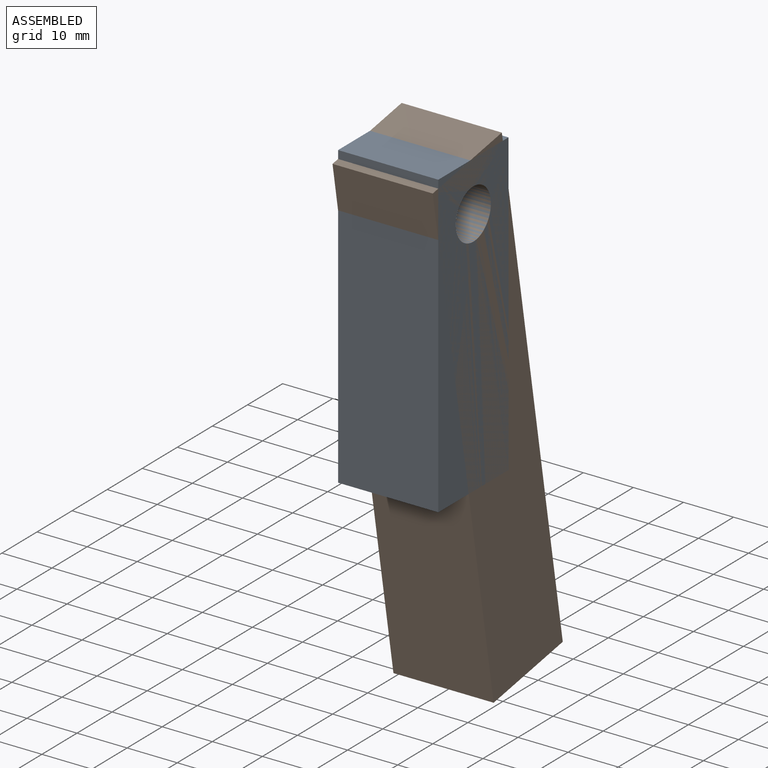
[diagram: assembled view]
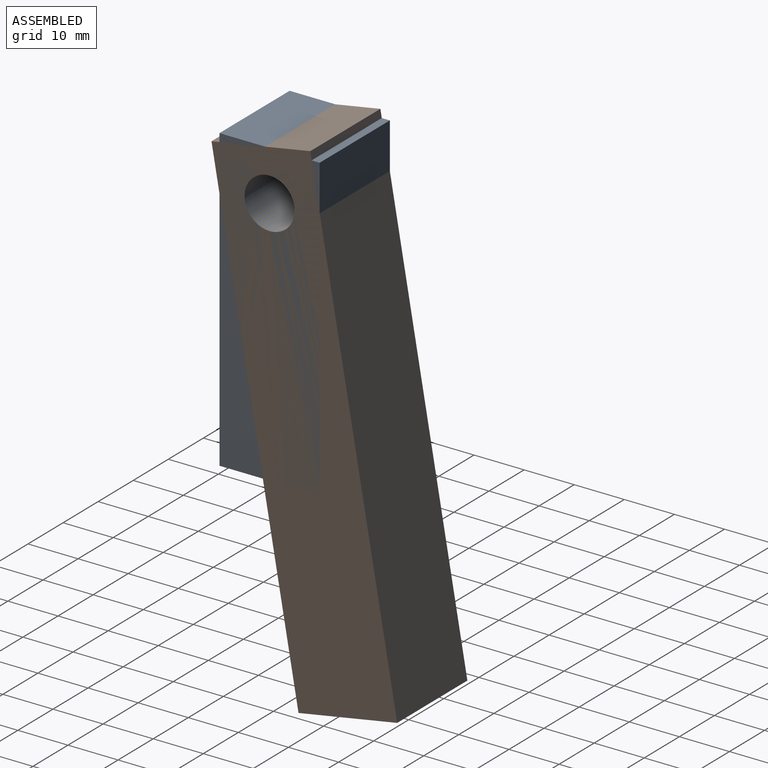
[diagram: assembled view, second angle]
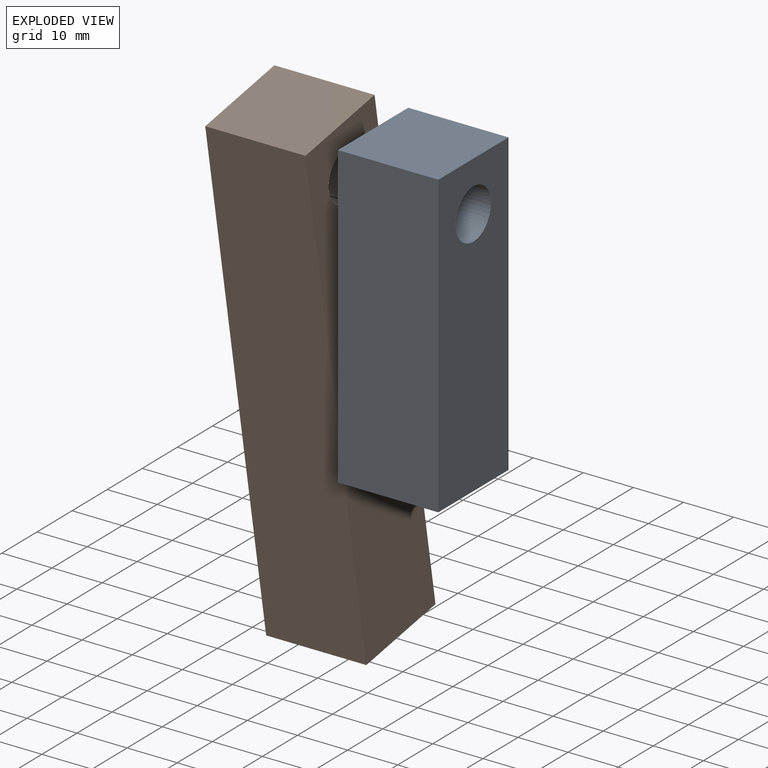
[diagram: exploded view]
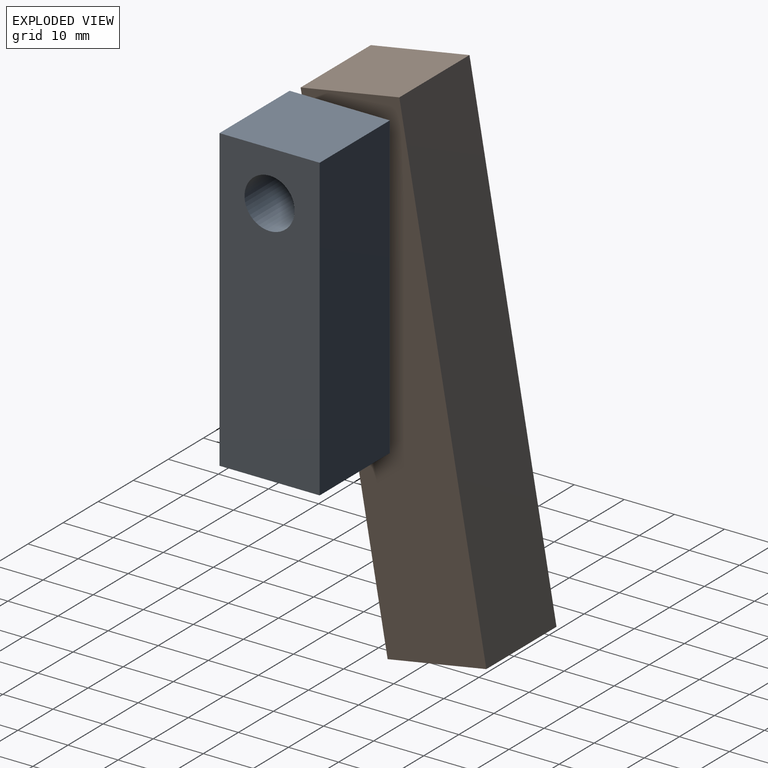
[diagram: exploded view, second angle]
ASSEMBLY  parts=2 mates=2
PART A: 7 faces, bbox 20x20x60 mm
  f0: plane 60x20mm, normal (-1,0,0), area 1121.5mm2, adj f1,f3,f4,f5,f6
  f1: plane 20x20mm, normal (0,0,-1), area 400mm2, adj f0,f2,f4,f5
  f2: plane 60x20mm, normal (1,0,0), area 1121.5mm2, adj f1,f3,f4,f5,f6
  f3: plane 20x20mm, normal (0,0,1), area 400mm2, adj f0,f2,f4,f5
  f4: plane 60x20mm, normal (0,-1,0), area 1200mm2, adj f0,f1,f2,f3
  f5: plane 60x20mm, normal (0,1,0), area 1200mm2, adj f0,f1,f2,f3
  f6: cylinder r=5mm len=20mm, axis (1,0,0), area 628.3mm2, adj f0,f2
PART B: 7 faces, bbox 20x20x100 mm
  f0: plane 100x20mm, normal (-1,0,0), area 1921.5mm2, adj f1,f3,f4,f5,f6
  f1: plane 20x20mm, normal (0,0,-1), area 400mm2, adj f0,f2,f4,f5
  f2: plane 100x20mm, normal (1,0,0), area 1921.5mm2, adj f1,f3,f4,f5,f6
  f3: plane 20x20mm, normal (0,0,1), area 400mm2, adj f0,f2,f4,f5
  f4: plane 100x20mm, normal (0,-1,0), area 2000mm2, adj f0,f1,f2,f3
  f5: plane 100x20mm, normal (0,1,0), area 2000mm2, adj f0,f1,f2,f3
  f6: cylinder r=5mm len=20mm, axis (1,0,0), area 628.3mm2, adj f0,f2
PLACE A t=(1.1,0,0)mm fixed
PLACE B rot(axis=(1,0,0),10deg) t=(1.1,15.48,-36.9)mm
MATE revolute A.f6 <-> B.f6  axis (-1,0,0) through (1.1,-10,50)mm
MATE planar B.f0 <-> A.f0  axis (-1,0,0) through (1.1,-2.77,9)mm
